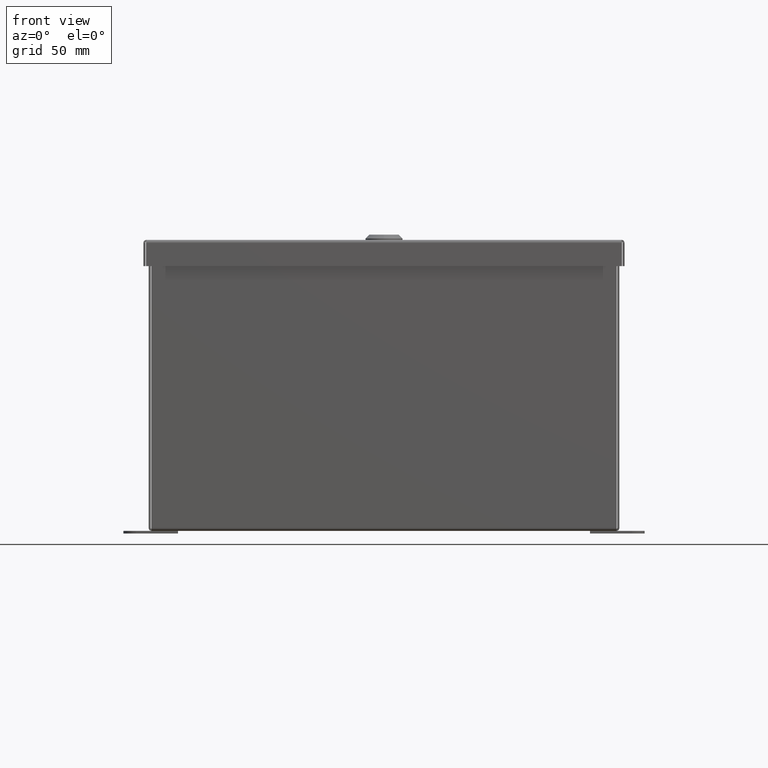
[diagram: clean part render]
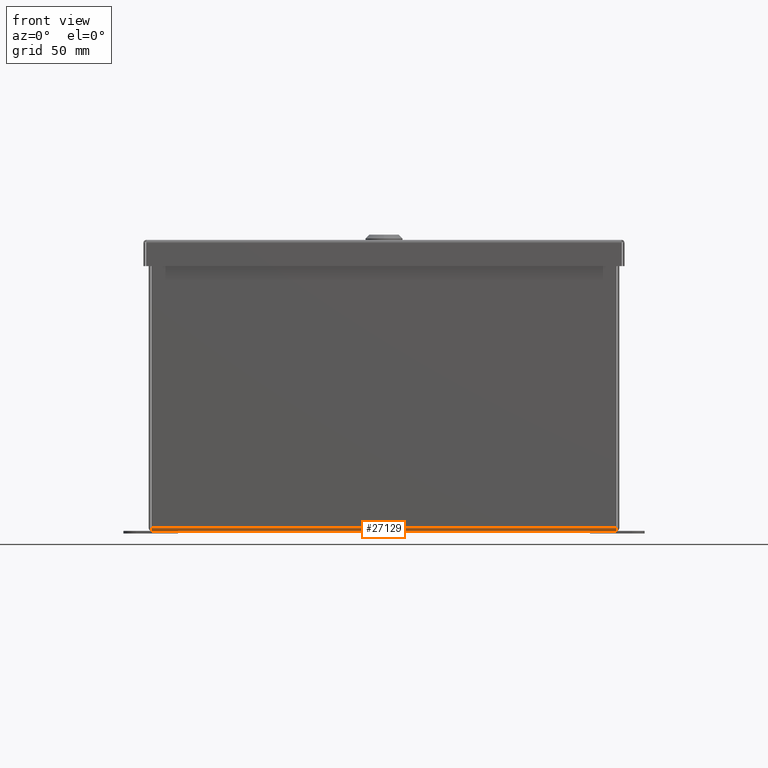
[diagram: same view with one face highlighted and labeled with its STEP entity id]
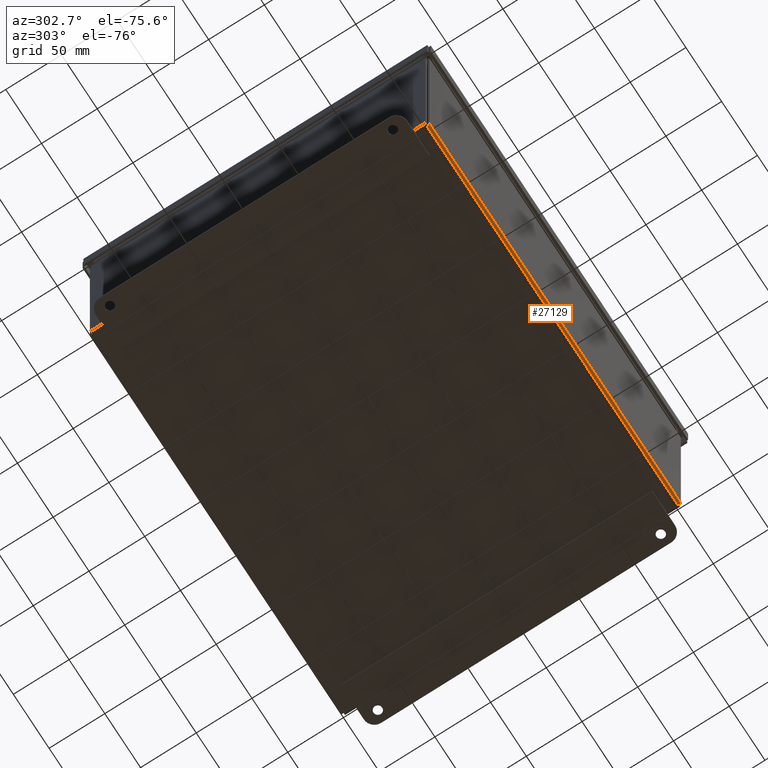
[diagram: same view with one face highlighted and labeled with its STEP entity id]
A machine part, front view. The second image highlights one B-rep face of the part: STEP entity #27129.
A second angle (auxiliary view) of the same face is appended — the face is thin or edge-on in the first view.
In plain terms, the highlighted cylindrical surface (edge-blend (fillet) strip) has radius 2.3685 mm, axis along (-1, 0, -0).
Its self-contained STEP definition (entity closure, byte-faithful):
#951 = CARTESIAN_POINT ( 'NONE',  ( -9.913787104731826005, -7.967322347903038171, -5.290459116071465573 ) ) ;
#1107 = CARTESIAN_POINT ( 'NONE',  ( -9.908040255017699138, -7.917970154564391905, -5.313500000000987100 ) ) ;
#2707 = CARTESIAN_POINT ( 'NONE',  ( -9.922090097423362565, -7.998899999999302679, -5.220250000000985047 ) ) ;
#3493 = CARTESIAN_POINT ( 'NONE',  ( 3.920799842767074939, -7.998899999999374621, -5.232570151114351198 ) ) ;
#6756 = ORIENTED_EDGE ( 'NONE', *, *, #34627, .T. ) ;
#7644 = CARTESIAN_POINT ( 'NONE',  ( -9.909317498878563057, -7.930186672227949707, -5.311031790839983557 ) ) ;
#8382 = VERTEX_POINT ( 'NONE', #34030 ) ;
#9782 = ORIENTED_EDGE ( 'NONE', *, *, #32978, .T. ) ;
#10462 = CARTESIAN_POINT ( 'NONE',  ( 3.915688028317893199, -7.979716423393193203, -5.277231987756010767 ) ) ;
#10609 = CARTESIAN_POINT ( 'NONE',  ( 3.909287553371017854, -7.929914036576074743, -5.311122359440793694 ) ) ;
#10910 = CARTESIAN_POINT ( 'NONE',  ( -9.906750000000061007, -7.905649999999304178, -5.313500000000987100 ) ) ;
#11497 = CARTESIAN_POINT ( 'NONE',  ( -9.916987344648475755, -7.986615300529080308, -5.266909710244275900 ) ) ;
#12996 = LINE ( 'NONE', #13909, #30589 ) ;
#13713 = EDGE_CURVE ( 'NONE', #40068, #30558, #37409, .T. ) ;
#13909 = CARTESIAN_POINT ( 'NONE',  ( -3.000000000000062617, -7.905649999999339705, -5.313500000000940027 ) ) ;
#14563 = ORIENTED_EDGE ( 'NONE', *, *, #25888, .T. ) ;
#15591 = CARTESIAN_POINT ( 'NONE',  ( 3.906749999999937994, -7.905649999999376121, -5.313500000000893841 ) ) ;
#16407 = AXIS2_PLACEMENT_3D ( 'NONE', #29440, #42914, #19347 ) ;
#17231 = CARTESIAN_POINT ( 'NONE',  ( 3.906749999999937994, -7.905649999999376121, -5.313500000000893841 ) ) ;
#17530 = CARTESIAN_POINT ( 'NONE',  ( 3.917610112416098023, -7.989437369099922748, -5.261628670852497969 ) ) ;
#18264 = CARTESIAN_POINT ( 'NONE',  ( -9.913151755313942104, -7.962632002232237660, -5.294316398388501987 ) ) ;
#19049 = LINE ( 'NONE', #28956, #21174 ) ;
#19347 = DIRECTION ( 'NONE',  ( -5.859191407322823223E-15, -1.000000000000000000, 1.171838281464564645E-14 ) ) ;
#20512 = CARTESIAN_POINT ( 'NONE',  ( 3.919517047037473390, -7.996431949845165477, -5.244786107498682348 ) ) ;
#21086 = CARTESIAN_POINT ( 'NONE',  ( 3.916964978573900691, -7.986509264969032351, -5.267096144681576497 ) ) ;
#21174 = VECTOR ( 'NONE', #22577, 39.37007874015748143 ) ;
#21245 = CARTESIAN_POINT ( 'NONE',  ( -9.911871461515616488, -7.952496453036597579, -5.301109073619202583 ) ) ;
#22577 = DIRECTION ( 'NONE',  ( -1.000000000000000000, 5.234363839187016733E-15, -6.696790086201103527E-15 ) ) ;
#24032 = CARTESIAN_POINT ( 'NONE',  ( 3.908040254701313998, -7.917970151544559521, -5.313500000000893841 ) ) ;
#24183 = CARTESIAN_POINT ( 'NONE',  ( 3.913124571294694931, -7.962425399816557281, -5.294473045103183395 ) ) ;
#24476 = CARTESIAN_POINT ( 'NONE',  ( 3.913773279102527702, -7.967223217937146273, -5.290546068088251452 ) ) ;
#24790 = CARTESIAN_POINT ( 'NONE',  ( -9.911224979319415596, -7.947029129544260329, -5.304037140846704190 ) ) ;
#24922 = CARTESIAN_POINT ( 'NONE',  ( -9.915068342912524813, -7.975945976971162032, -5.281823322933314913 ) ) ;
#25091 = EDGE_LOOP ( 'NONE', ( #14563, #28174, #9782, #6756 ) ) ;
#25697 = FACE_OUTER_BOUND ( 'NONE', #25091, .T. ) ;
#25888 = EDGE_CURVE ( 'NONE', #8382, #40068, #12996, .T. ) ;
#27129 = ADVANCED_FACE ( 'NONE', ( #25697 ), #42718, .T. ) ;
#28174 = ORIENTED_EDGE ( 'NONE', *, *, #13713, .T. ) ;
#28934 = CARTESIAN_POINT ( 'NONE',  ( 3.922090097423237331, -7.998899999999374621, -5.220250000000892676 ) ) ;
#28956 = CARTESIAN_POINT ( 'NONE',  ( -3.000000000000063949, -7.998899999999338206, -5.220250000000938861 ) ) ;
#29440 = CARTESIAN_POINT ( 'NONE',  ( -3.000000000000063505, -7.905649999999338817, -5.220250000000939750 ) ) ;
#30558 = VERTEX_POINT ( 'NONE', #28934 ) ;
#30589 = VECTOR ( 'NONE', #42581, 39.37007874015748143 ) ;
#30685 = VERTEX_POINT ( 'NONE', #2707 ) ;
#31352 = CARTESIAN_POINT ( 'NONE',  ( -9.915715138772016601, -7.979873088697004846, -5.277025360449309588 ) ) ;
#31943 = CARTESIAN_POINT ( 'NONE',  ( -9.922090097423362565, -7.998899999999302679, -5.220250000000985047 ) ) ;
#32978 = EDGE_CURVE ( 'NONE', #30558, #30685, #19049, .T. ) ;
#34030 = CARTESIAN_POINT ( 'NONE',  ( -9.906750000000061007, -7.905649999999304178, -5.313500000000987100 ) ) ;
#34136 = CARTESIAN_POINT ( 'NONE',  ( 3.915054538962632780, -7.975859010937038640, -5.281922466620204482 ) ) ;
#34289 = CARTESIAN_POINT ( 'NONE',  ( 3.922090097423237331, -7.998899999999374621, -5.220250000000892676 ) ) ;
#34575 = CARTESIAN_POINT ( 'NONE',  ( 3.911215197077402284, -7.946946789699627089, -5.304082447959578062 ) ) ;
#34627 = EDGE_CURVE ( 'NONE', #30685, #8382, #40259, .T. ) ;
#35038 = CARTESIAN_POINT ( 'NONE',  ( -9.919547017712728731, -7.996522509798529299, -5.244513489394370787 ) ) ;
#37409 = B_SPLINE_CURVE_WITH_KNOTS ( 'NONE', 3,
 ( #17231, #24032, #10609, #34575, #41391, #24183, #24476, #34136, #10462, #21086, #17530, #20512, #3493, #34289 ),
 .UNSPECIFIED., .F., .F.,
 ( 4, 2, 2, 2, 2, 2, 4 ),
 ( 0.0000000000000000000, 0.0009275653970796912716, 0.001391348095619519181, 0.001855130794159347198, 0.002318913492699175433, 0.002782696191239002800, 0.003710261588318703504 ),
 .UNSPECIFIED. ) ;
#38583 = CARTESIAN_POINT ( 'NONE',  ( -9.917619874719104445, -7.989482677389420751, -5.261546326293928821 ) ) ;
#40068 = VERTEX_POINT ( 'NONE', #15591 ) ;
#40259 = B_SPLINE_CURVE_WITH_KNOTS ( 'NONE', 3,
 ( #31943, #41555, #35038, #38583, #11497, #31352, #24922, #951, #18264, #21245, #24790, #7644, #1107, #10910 ),
 .UNSPECIFIED., .F., .F.,
 ( 4, 2, 2, 2, 2, 2, 4 ),
 ( 1.144391699630559363E-16, 0.0009275660503707581312, 0.001391349075556071223, 0.001855132100741384640, 0.002318915125926697841, 0.002782698151112010607, 0.003710264201482652187 ),
 .UNSPECIFIED. ) ;
#41391 = CARTESIAN_POINT ( 'NONE',  ( 3.911849044003959275, -7.952310039595313462, -5.301215098367802803 ) ) ;
#41555 = CARTESIAN_POINT ( 'NONE',  ( -9.920799842824580494, -7.998899999999301791, -5.232570150566511202 ) ) ;
#42581 = DIRECTION ( 'NONE',  ( 1.000000000000000000, -5.284317631071162945E-15, 6.696790086201105105E-15 ) ) ;
#42718 = CYLINDRICAL_SURFACE ( 'NONE', #16407, 0.09324999999999988853 ) ;
#42914 = DIRECTION ( 'NONE',  ( -1.000000000000000000, 5.234363839187016733E-15, -6.696790086201104316E-15 ) ) ;